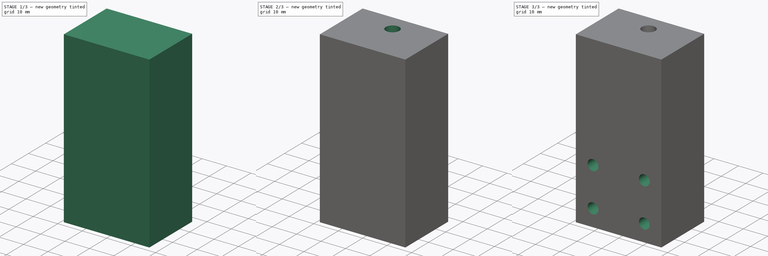
[diagram: build sequence overview — one tinted view per stage of 3, left to right]
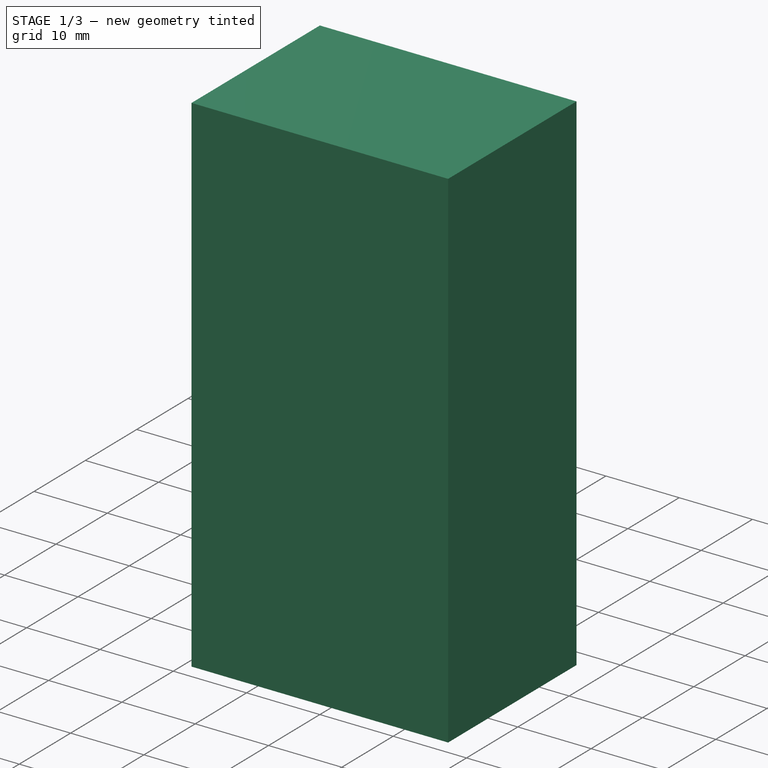
[diagram: stage 1 of 3 — iso view after this stage's code; geometry added in this stage tinted green]
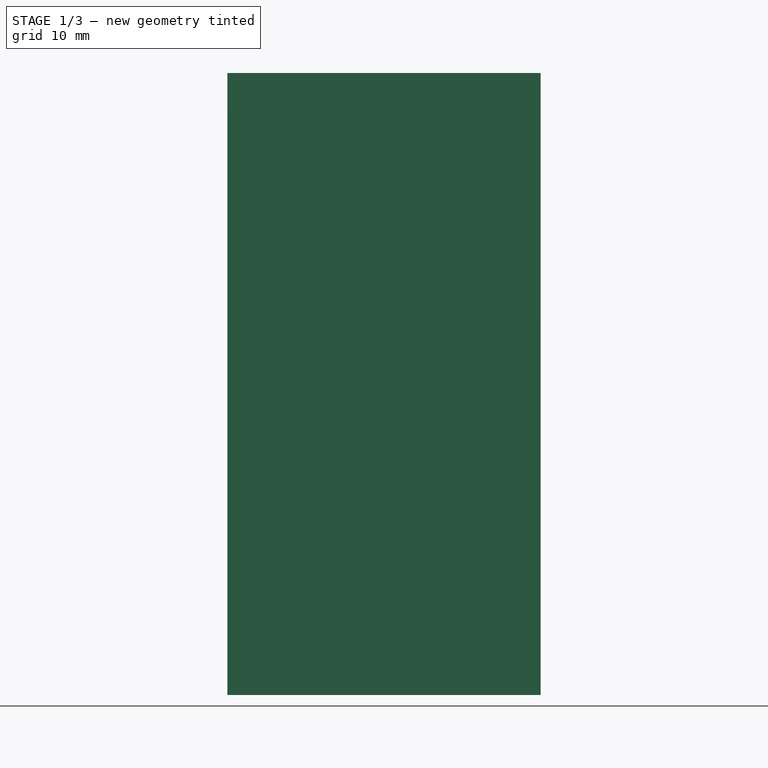
[diagram: stage 1 of 3 — front view after this stage's code; geometry added in this stage tinted green]
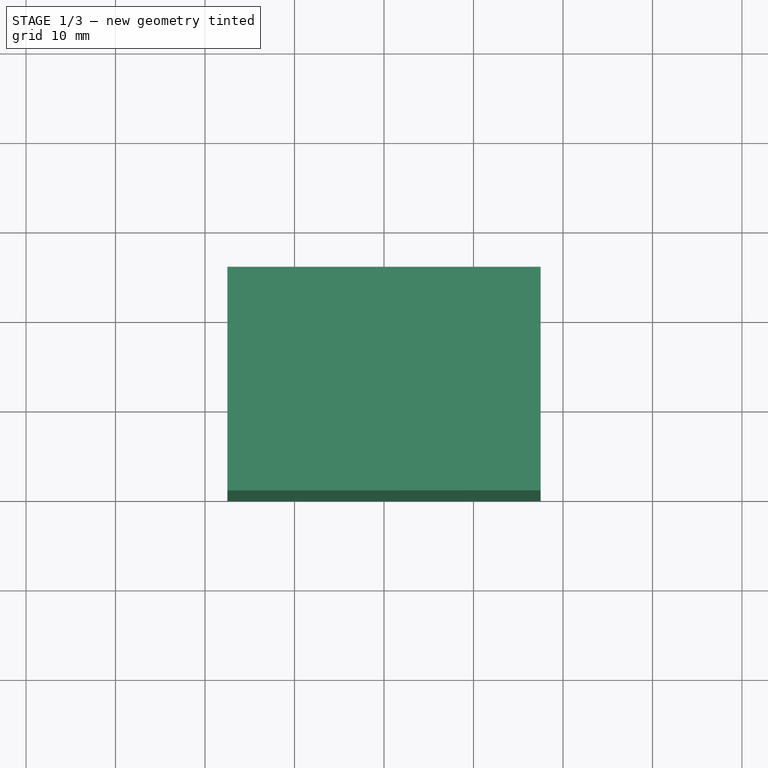
[diagram: stage 1 of 3 — top view after this stage's code; geometry added in this stage tinted green]
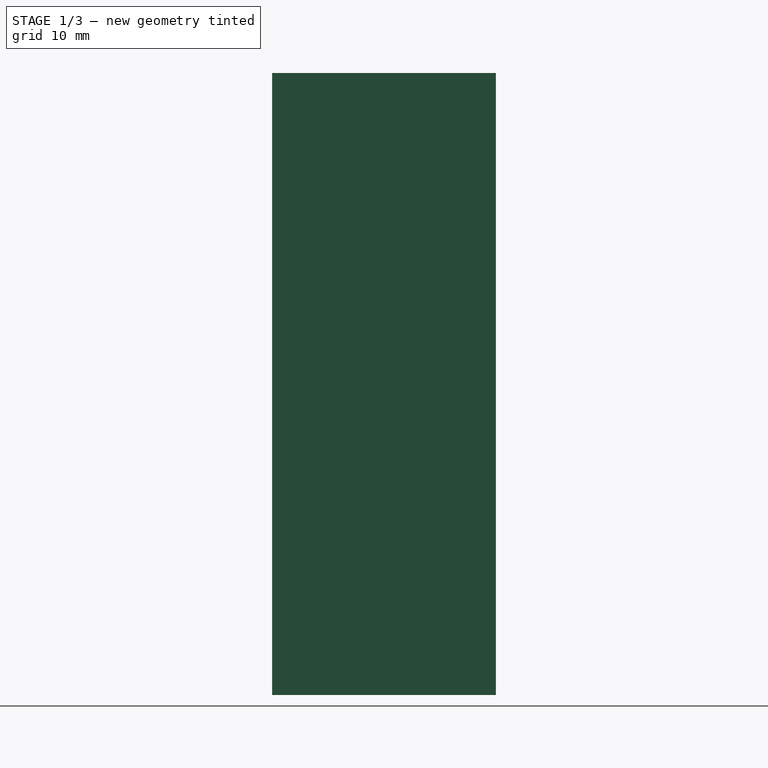
[diagram: stage 1 of 3 — right view after this stage's code; geometry added in this stage tinted green]
FCSTD DOCUMENT  (FreeCAD 0.18.4R)
Label: part13
License: All rights reserved
LicenseURL: http://en.wikipedia.org/wiki/All_rights_reserved
objects: Sketcher::SketchObject×5, PartDesign::Pocket×2, PartDesign::Hole×2, PartDesign::Pad×1, PartDesign::Body×1, App::Part×1
note: 16 computed .brp shape members not serialized (recipe doc carries the construction recipe); baked Part::Feature solids carry a one-line shape summary decoded from their .brp

FEATURE [Sketcher::SketchObject] Sketch
  MapMode = 5
  Placement = pos=(0,0,0) rot=(0.57735,0.57735,0.57735;2.0944rad)
  Support = -> [YZ_Plane001]
  sketch-geometry (4):
    g0: LineSegment StartX=30 StartY=-10 StartZ=0 EndX=30 EndY=-79.5 EndZ=0
    g1: LineSegment StartX=30 StartY=-79.5 StartZ=0 EndX=55 EndY=-79.5 EndZ=0
    g2: LineSegment StartX=55 StartY=-79.5 StartZ=0 EndX=55 EndY=-10 EndZ=0
    g3: LineSegment StartX=55 StartY=-10 StartZ=0 EndX=30 EndY=-10 EndZ=0
  constraints (12):
    c: Vertical(g0)
    c: Horizontal(g1)
    c: Vertical(g2)
    c: Horizontal(g3)
    c: Coincident(g0,g3)
    c: Coincident(g3,g2)
    c: Coincident(g1,g0)
    c: Coincident(g1,g2)
    c: DistanceX(g-1,g0) = 30
    c: DistanceX(g-1,g2) = 55
    c: DistanceY(g0,g-1) = 10
    c: DistanceY(g1,g-1) = 79.5
FEATURE [PartDesign::Pad] Pad
  Length = 35
  Length2 = 100
  Midplane = true
  Placement = pos=(0,0,0) rot=(0.57735,0.57735,0.57735;2.0944rad)
  Profile = -> Sketch
  Type = 0
FEATURE [Sketcher::SketchObject] Sketch002
  AttachmentOffset = pos=(0,0,-8) rot=(0,0,1;0rad)
  MapMode = 5
  Placement = pos=(1.3e-14,-1.2e-14,-18) rot=(0,0,-1;1.5708rad)
  sketch-geometry (5):
    g0: LineSegment StartX=-55 StartY=-4.25 StartZ=0 EndX=-55 EndY=4.25 EndZ=0
    g1: LineSegment StartX=-55 StartY=4.25 StartZ=0 EndX=-45.0463 EndY=4.25 EndZ=0
    g2: LineSegment StartX=-45.0463 StartY=4.25 StartZ=0 EndX=-42.5925 EndY=0 EndZ=0
    g3: LineSegment StartX=-42.5925 StartY=0 StartZ=0 EndX=-45.0463 EndY=-4.25 EndZ=0
    g4: LineSegment StartX=-45.0463 StartY=-4.25 StartZ=0 EndX=-55 EndY=-4.25 EndZ=0
  constraints (13):
    c: Coincident(g0,g1)
    c: Horizontal(g1)
    c: Coincident(g1,g2)
    c: Coincident(g2,g3)
    c: Coincident(g3,g4)
    c: Coincident(g4,g0)
    c: Symmetric(g0,g0,g-1)
    c: PointOnObject(g2,g-1)
    c: Symmetric(g1,g3,g-1)
    c: Angle(g1,g2) = 2.0944
    c: DistanceY(g0,g0) = 8.5
    c: DistanceX(g0,g-1) = 55
    c: DistanceX(g0,g2) = 12.4075
FEATURE [PartDesign::Pocket] Pocket
  BaseFeature = -> Pad
  Length = 4.5
  Length2 = 100
  Placement = pos=(0,0,0) rot=(0.57735,0.57735,0.57735;2.0944rad)
  Profile = -> Sketch002
  Type = 0
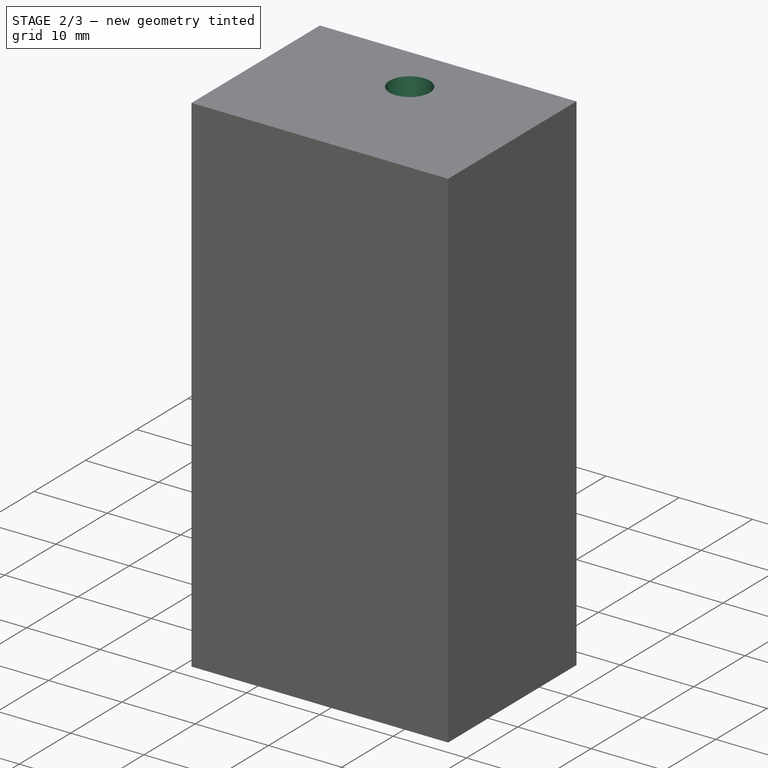
[diagram: stage 2 of 3 — iso view after this stage's code; geometry added in this stage tinted green]
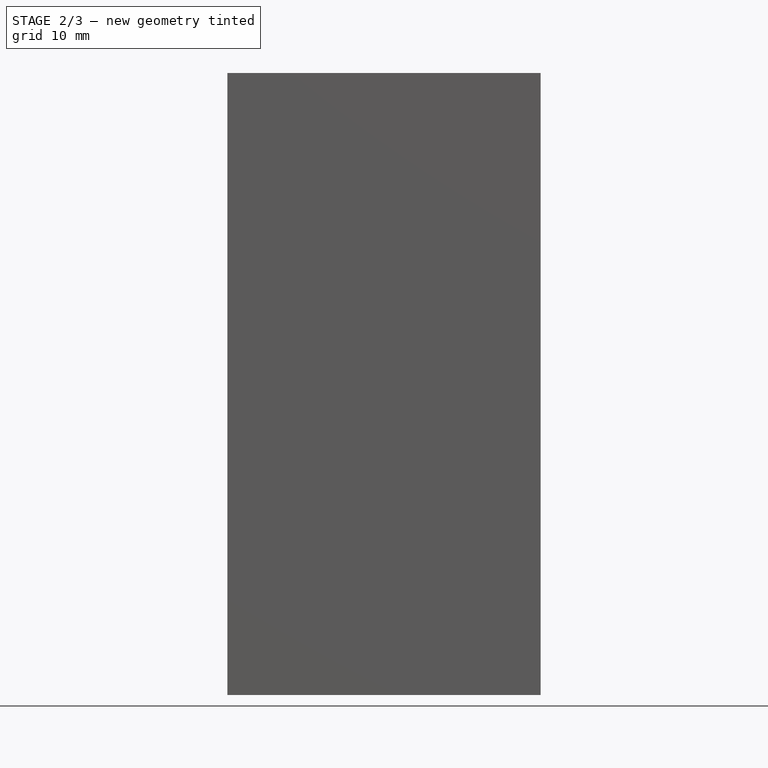
[diagram: stage 2 of 3 — front view after this stage's code; geometry added in this stage tinted green]
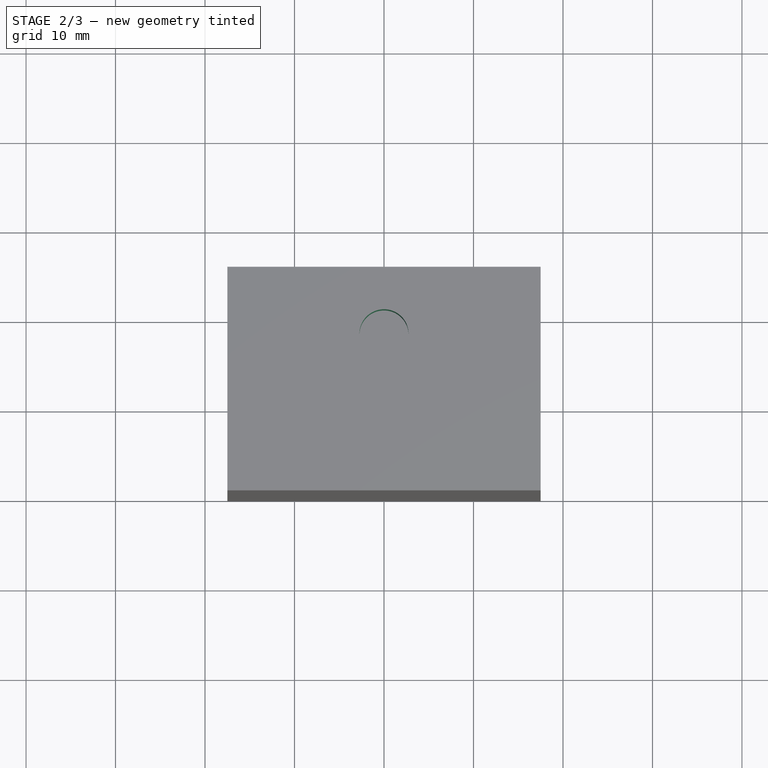
[diagram: stage 2 of 3 — top view after this stage's code; geometry added in this stage tinted green]
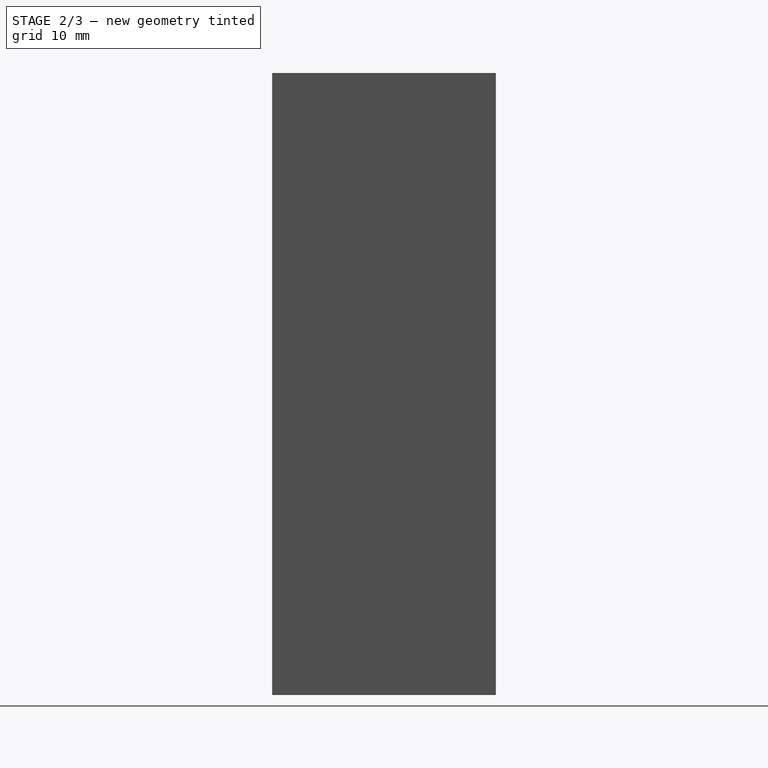
[diagram: stage 2 of 3 — right view after this stage's code; geometry added in this stage tinted green]
FEATURE [Sketcher::SketchObject] Sketch003
  MapMode = 5
  Placement = pos=(2.8e-15,-4.4e-15,-10) rot=(0,0,-1;1.5708rad)
  Support = -> [Pocket]
  sketch-geometry (1):
    g0: Circle CenterX=-47.5 CenterY=0 CenterZ=0 NormalX=0 NormalY=0 NormalZ=1 AngleXU=0 Radius=4.15112
  constraints (2):
    c: PointOnObject(g0,g-1)
    c: DistanceX(g0,g-1) = 47.5
FEATURE [PartDesign::Hole] Hole001
  BaseFeature = -> Pocket
  Depth = 12
  DepthType = 0
  Diameter = 5.5
  DrillPoint = 0
  DrillPointAngle = 118
  HoleCutCountersinkAngle = 90
  HoleCutDepth = 0
  HoleCutDiameter = 5
  HoleCutType = 0
  ModelActualThread = false
  Placement = pos=(0,0,0) rot=(0.57735,0.57735,0.57735;2.0944rad)
  Profile = -> Sketch003
  Tapered = false
  TaperedAngle = 90
  ThreadAngle = 0
  ThreadClass = 0
  ThreadCutOffInner = 0
  ThreadCutOffOuter = 0
  ThreadDirection = 0
  ThreadFit = 0
  ThreadPitch = 0
  ThreadSize = 6
  ThreadType = 1
  Threaded = false
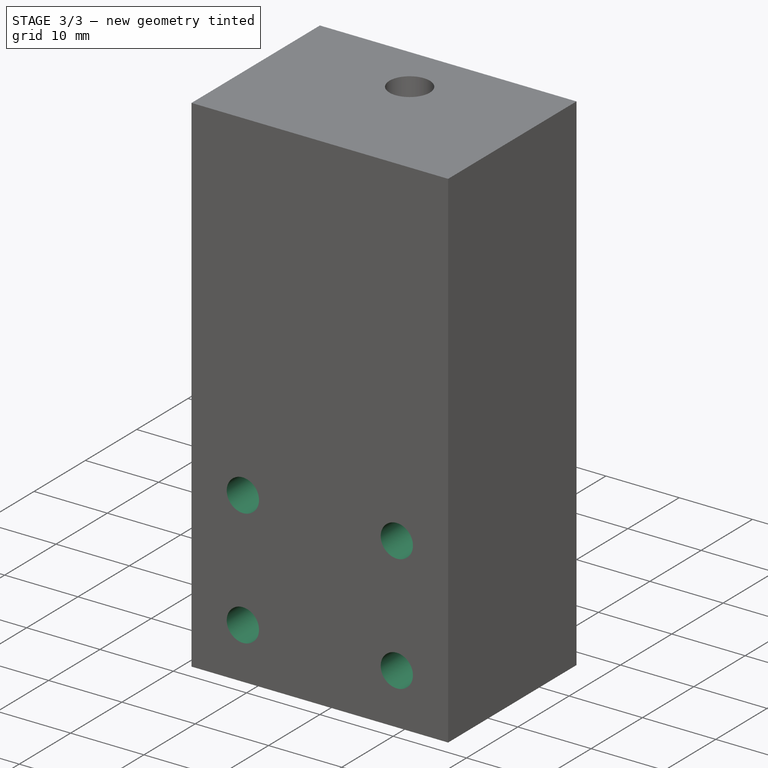
[diagram: stage 3 of 3 — iso view after this stage's code; geometry added in this stage tinted green]
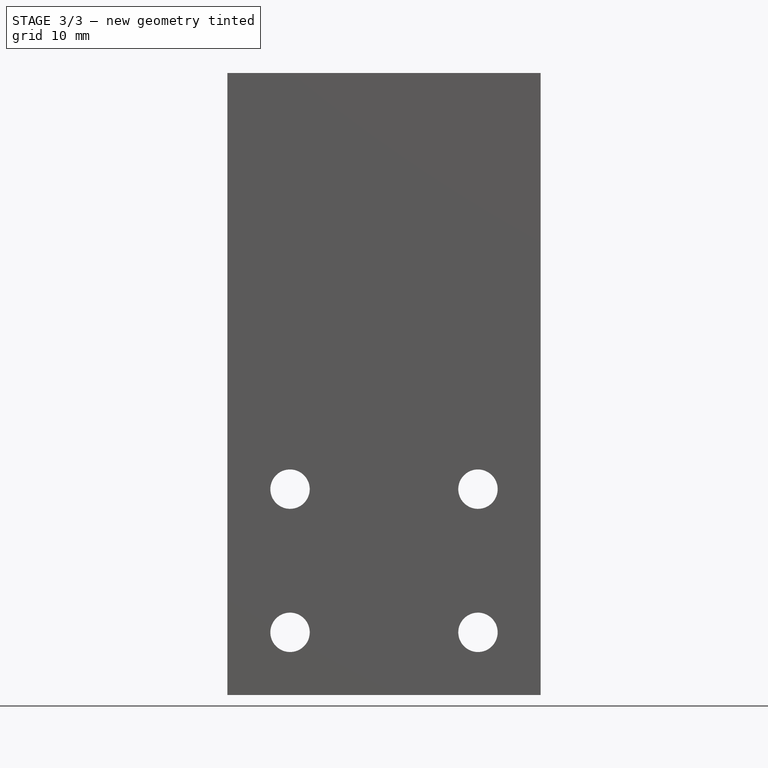
[diagram: stage 3 of 3 — front view after this stage's code; geometry added in this stage tinted green]
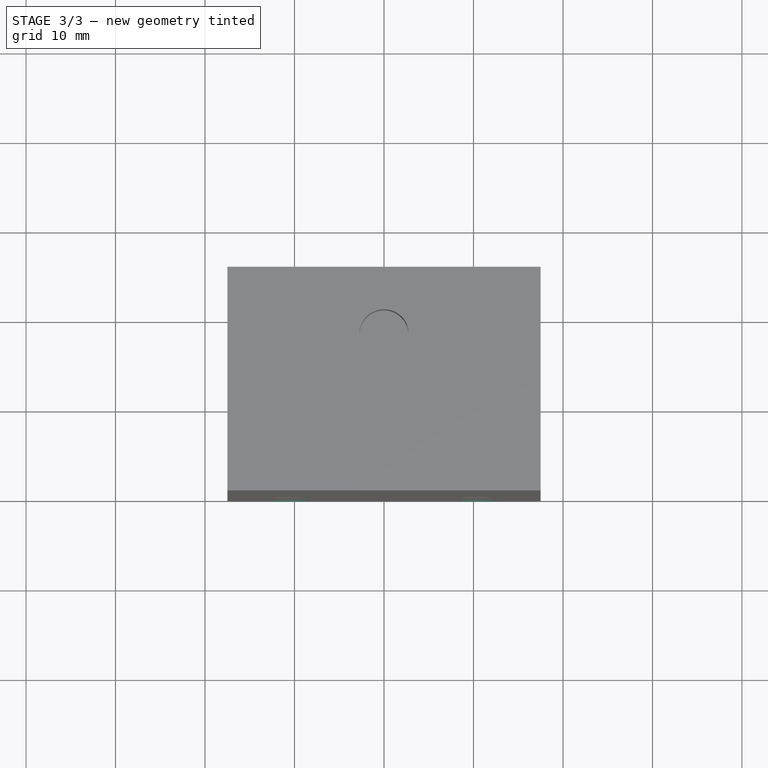
[diagram: stage 3 of 3 — top view after this stage's code; geometry added in this stage tinted green]
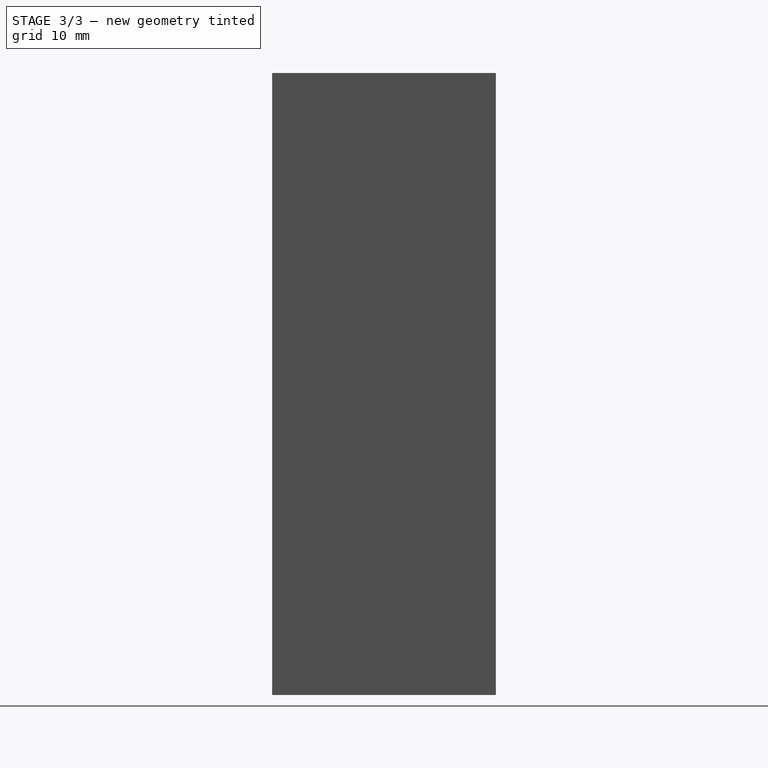
[diagram: stage 3 of 3 — right view after this stage's code; geometry added in this stage tinted green]
FEATURE [Sketcher::SketchObject] Sketch004
  MapMode = 5
  Placement = pos=(2.42e-14,55,-1.21e-14) rot=(0.57735,0.57735,0.57735;4.18879rad)
  Support = -> [Hole001]
  sketch-geometry (4):
    g0: Circle CenterX=-72.5 CenterY=10.5 CenterZ=0 NormalX=0 NormalY=0 NormalZ=1 AngleXU=0 Radius=3.22637
    g1: Circle CenterX=-56.5 CenterY=10.5 CenterZ=0 NormalX=0 NormalY=0 NormalZ=1 AngleXU=0 Radius=5.75257
    g2: Circle CenterX=-72.5 CenterY=-10.5 CenterZ=0 NormalX=0 NormalY=0 NormalZ=1 AngleXU=0 Radius=4.87574
    g3: Circle CenterX=-56.5 CenterY=-10.5 CenterZ=0 NormalX=0 NormalY=0 NormalZ=1 AngleXU=0 Radius=6.25907
  constraints (6):
    c: Symmetric(g0,g2,g-1)
    c: Symmetric(g1,g3,g-1)
    c: DistanceX(g0,g1) = 16
    c: DistanceY(g2,g0) = 21
    c: DistanceY(g3,g1) = 21
    c: DistanceX(g0,g-1) = 72.5
FEATURE [PartDesign::Hole] Hole
  BaseFeature = -> Hole001
  Depth = 25
  DepthType = 1
  Diameter = 4.4
  DrillPoint = 0
  DrillPointAngle = 118
  HoleCutCountersinkAngle = 90
  HoleCutDepth = 0
  HoleCutDiameter = 4
  HoleCutType = 0
  ModelActualThread = false
  Placement = pos=(0,0,0) rot=(0.57735,0.57735,0.57735;2.0944rad)
  Profile = -> Sketch004
  Tapered = false
  TaperedAngle = 90
  ThreadAngle = 0
  ThreadClass = 0
  ThreadCutOffInner = 0
  ThreadCutOffOuter = 0
  ThreadDirection = 0
  ThreadFit = 0
  ThreadPitch = 0
  ThreadSize = 5
  ThreadType = 1
  Threaded = false
FEATURE [Sketcher::SketchObject] Sketch005
  MapMode = 5
  Placement = pos=(3.03e-14,55,-1.21e-14) rot=(0.57735,0.57735,0.57735;4.18879rad)
  Support = -> [Hole]
  sketch-geometry (28):
    g0: LineSegment StartX=-70.1906 StartY=14.5 StartZ=0 EndX=-74.8094 EndY=14.5 EndZ=0
    g1: LineSegment StartX=-74.8094 StartY=14.5 StartZ=0 EndX=-77.1188 EndY=10.5 EndZ=0
    g2: LineSegment StartX=-77.1188 StartY=10.5 StartZ=0 EndX=-74.8094 EndY=6.5 EndZ=0
    g3: LineSegment StartX=-74.8094 StartY=6.5 StartZ=0 EndX=-70.1906 EndY=6.5 EndZ=0
    g4: LineSegment StartX=-70.1906 StartY=6.5 StartZ=0 EndX=-67.8812 EndY=10.5 EndZ=0
    g5: LineSegment StartX=-67.8812 StartY=10.5 StartZ=0 EndX=-70.1906 EndY=14.5 EndZ=0
    g6: Circle [constr] CenterX=-72.5 CenterY=10.5 CenterZ=0 NormalX=0 NormalY=0 NormalZ=1 AngleXU=0 Radius=4.6188
    g7: LineSegment StartX=-51.8812 StartY=10.5 StartZ=0 EndX=-54.1906 EndY=14.5 EndZ=0
    g8: LineSegment StartX=-54.1906 StartY=14.5 StartZ=0 EndX=-58.8094 EndY=14.5 EndZ=0
    g9: LineSegment StartX=-58.8094 StartY=14.5 StartZ=0 EndX=-61.1188 EndY=10.5 EndZ=0
    g10: LineSegment StartX=-61.1188 StartY=10.5 StartZ=0 EndX=-58.8094 EndY=6.5 EndZ=0
    g11: LineSegment StartX=-58.8094 StartY=6.5 StartZ=0 EndX=-54.1906 EndY=6.5 EndZ=0
    g12: LineSegment StartX=-54.1906 StartY=6.5 StartZ=0 EndX=-51.8812 EndY=10.5 EndZ=0
    g13: Circle [constr] CenterX=-56.5 CenterY=10.5 CenterZ=0 NormalX=0 NormalY=0 NormalZ=1 AngleXU=0 Radius=4.6188
    g14: LineSegment StartX=-51.8812 StartY=-10.5 StartZ=0 EndX=-54.1906 EndY=-6.5 EndZ=0
    g15: LineSegment StartX=-54.1906 StartY=-6.5 StartZ=0 EndX=-58.8094 EndY=-6.5 EndZ=0
    g16: LineSegment StartX=-58.8094 StartY=-6.5 StartZ=0 EndX=-61.1188 EndY=-10.5 EndZ=0
    g17: LineSegment StartX=-61.1188 StartY=-10.5 StartZ=0 EndX=-58.8094 EndY=-14.5 EndZ=0
    g18: LineSegment StartX=-58.8094 StartY=-14.5 StartZ=0 EndX=-54.1906 EndY=-14.5 EndZ=0
    g19: LineSegment StartX=-54.1906 StartY=-14.5 StartZ=0 EndX=-51.8812 EndY=-10.5 EndZ=0
    g20: Circle [constr] CenterX=-56.5 CenterY=-10.5 CenterZ=0 NormalX=0 NormalY=0 NormalZ=1 AngleXU=0 Radius=4.6188
    g21: LineSegment StartX=-70.1906 StartY=-6.5 StartZ=0 EndX=-74.8094 EndY=-6.5 EndZ=0
    g22: LineSegment StartX=-74.8094 StartY=-6.5 StartZ=0 EndX=-77.1188 EndY=-10.5 EndZ=0
    g23: LineSegment StartX=-77.1188 StartY=-10.5 StartZ=0 EndX=-74.8094 EndY=-14.5 EndZ=0
    g24: LineSegment StartX=-74.8094 StartY=-14.5 StartZ=0 EndX=-70.1906 EndY=-14.5 EndZ=0
    g25: LineSegment StartX=-70.1906 StartY=-14.5 StartZ=0 EndX=-67.8812 EndY=-10.5 EndZ=0
    g26: LineSegment StartX=-67.8812 StartY=-10.5 StartZ=0 EndX=-70.1906 EndY=-6.5 EndZ=0
    g27: Circle [constr] CenterX=-72.5 CenterY=-10.5 CenterZ=0 NormalX=0 NormalY=0 NormalZ=1 AngleXU=0 Radius=4.6188
  constraints (66):
    c: Coincident(g0,g1)
    c: Coincident(g1,g2)
    c: Coincident(g2,g3)
    c: Coincident(g3,g4)
    c: Coincident(g4,g5)
    c: Coincident(g5,g0)
    c: Equal(g0, g1-g5) x5
    c: PointOnObject(g0,g6)
    c: PointOnObject(g1,g6)
    c: PointOnObject(g2,g6)
    c: PointOnObject(g3,g6)
    c: PointOnObject(g4,g6)
    c: PointOnObject(g5,g6)
    c: Coincident(g7,g8)
    c: Coincident(g8,g9)
    c: Coincident(g9,g10)
    c: Coincident(g10,g11)
    c: Coincident(g11,g12)
    c: Coincident(g12,g7)
    c: Equal(g7, g8-g12) x5
    c: PointOnObject(g7,g13)
    c: PointOnObject(g8,g13)
    c: PointOnObject(g9,g13)
    c: PointOnObject(g10,g13)
    c: PointOnObject(g11,g13)
    c: PointOnObject(g12,g13)
    c: Coincident(g14,g15)
    c: Coincident(g15,g16)
    c: Coincident(g16,g17)
    c: Coincident(g17,g18)
    c: Coincident(g18,g19)
    c: Coincident(g19,g14)
    c: Equal(g14, g15-g19) x5
    c: PointOnObject(g14,g20)
    c: PointOnObject(g15,g20)
    c: PointOnObject(g16,g20)
    c: PointOnObject(g17,g20)
    c: PointOnObject(g18,g20)
    c: PointOnObject(g19,g20)
    c: Coincident(g21,g22)
    c: Coincident(g22,g23)
    c: Coincident(g23,g24)
    c: Coincident(g24,g25)
    c: Coincident(g25,g26)
    c: Coincident(g26,g21)
    c: Equal(g21, g22-g26) x5
    c: PointOnObject(g21,g27)
    c: PointOnObject(g22,g27)
    c: PointOnObject(g23,g27)
    c: PointOnObject(g24,g27)
    c: PointOnObject(g25,g27)
    c: PointOnObject(g26,g27)
    c: Symmetric(g13,g20,g-1)
    c: Symmetric(g6,g27,g-1)
    c: DistanceY(g27,g6) = 21
    c: DistanceY(g20,g13) = 21
    c: DistanceX(g6,g13) = 16
    c: Horizontal(g0)
    c: Horizontal(g8)
    c: Horizontal(g21)
    c: Horizontal(g15)
    c: Equal(g0,g8)
    c: Equal(g21,g0)
    c: Equal(g15,g8)
    c: DistanceY(g2,g0) = 8
    c: DistanceX(g6,g-1) = 72.5
FEATURE [PartDesign::Pocket] Pocket001
  BaseFeature = -> Hole
  Length = 3.2
  Length2 = 100
  Placement = pos=(0,0,0) rot=(0.57735,0.57735,0.57735;2.0944rad)
  Profile = -> Sketch005
  Type = 0
FEATURE [PartDesign::Body] Body
  Group = -> [Sketch,Pad,Sketch002,Pocket,Sketch003,Hole001,Sketch004,Hole,Sketch005,Pocket001]
  Origin = -> Origin001
  Tip = -> Pocket001
FEATURE [App::Part] Part  label="part7"
  Group = -> [Body]
  Origin = -> Origin
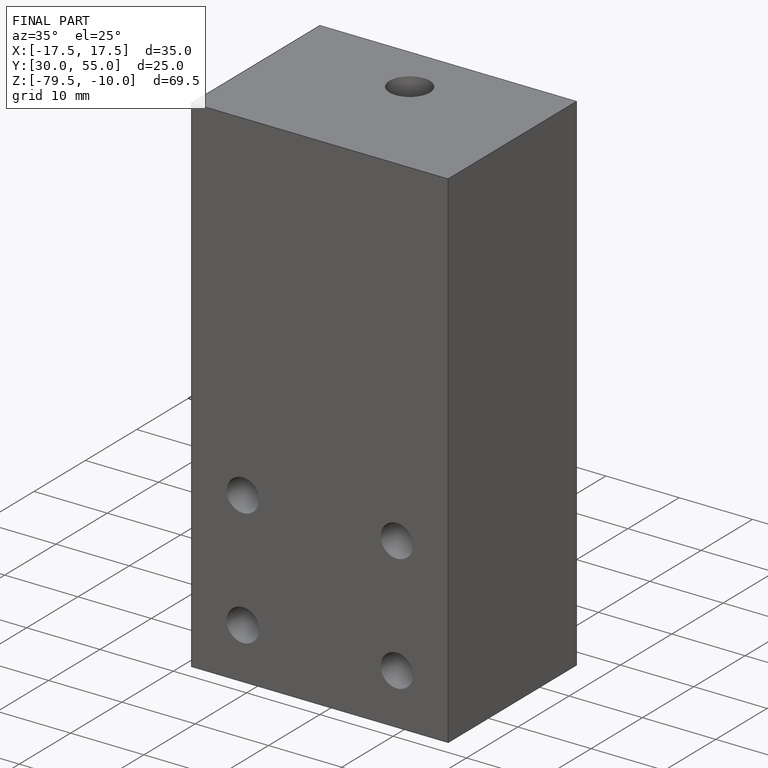
[diagram: finished part — iso view with bounding-box wireframe]
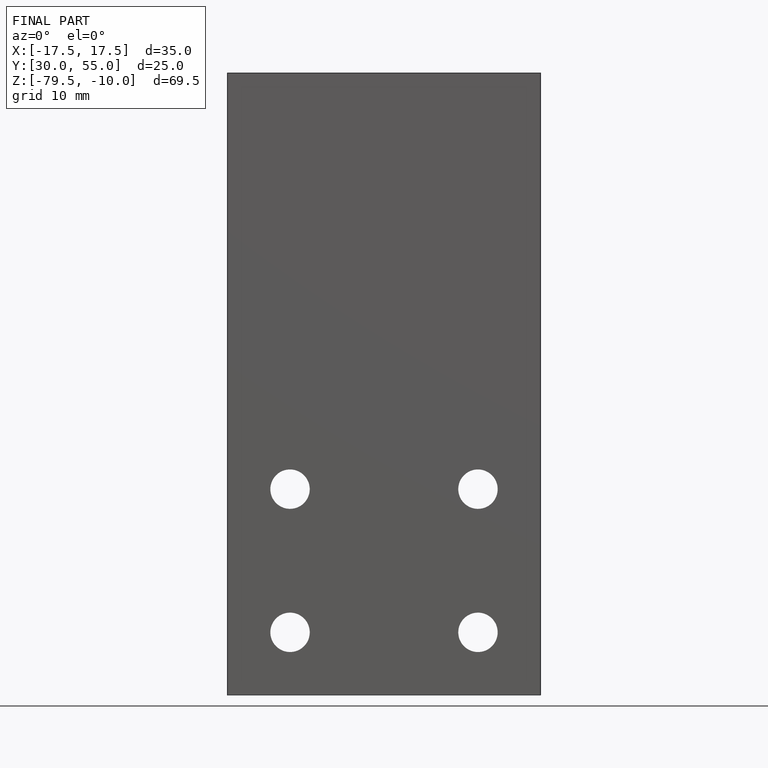
[diagram: finished part — front view with bounding-box wireframe]
